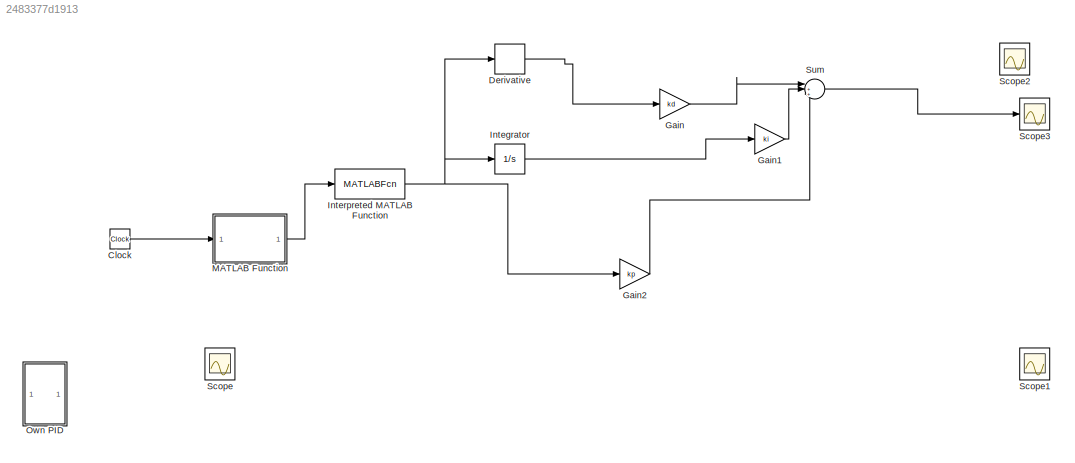
MODEL slx_2483377d1913
KIND model
CONFIG AbsTol = auto
CONFIG EnableMultiTasking = off
CONFIG FixedStep = 1e-3
CONFIG MaxStep = auto
CONFIG MinStep = auto
CONFIG RelTol = 1e-3
CONFIG SampleTimeConstraint = Unconstrained
CONFIG SolverName = FixedStepAuto
CONFIG StartTime = 0.0
CONFIG StopTime = 0.1
BLOCK [Clock] Clock
BLOCK [Derivative] Derivative
BLOCK [Gain] Gain
  Gain = kd
BLOCK [Gain] Gain1
  Gain = ki
BLOCK [Gain] Gain2
  Gain = kp
BLOCK [Integrator] Integrator
  Ports = [1, 1]
BLOCK [MATLABFcn] Interpreted MATLAB Function
  MATLABFcn = convexoptimizationsc
  Output1D = off
  OutputDimensions = 2
  Ports = [1, 1]
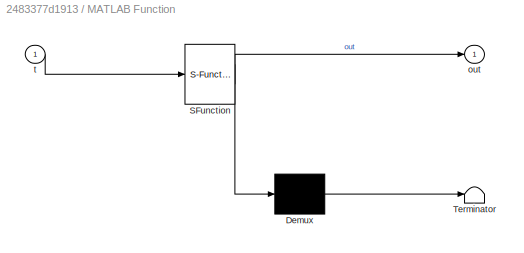
BLOCK [SubSystem] MATLAB Function
  ErrorFcn = Stateflow.Translate.translate
  PermitHierarchicalResolution = ExplicitOnly
  Ports = [1, 1]
  RequestExecContextInheritance = off
  SFBlockType = MATLAB Function
  TreatAsAtomicUnit = on
BLOCK [Demux] MATLAB Function/ Demux 
  Outputs = 1
  Ports = [1, 1]
BLOCK [S-Function] MATLAB Function/ SFunction 
  EnableBusSupport = on
  FunctionName = sf_sfun
  PortCounts = [1 2]
  Ports = [1, 2]
  SFcnIsStateOwnerBlock = off
  SFunctionDeploymentMode = off
  Tag = Stateflow S-Function 2
BLOCK [Terminator] MATLAB Function/ Terminator 
BLOCK [Outport] MATLAB Function/out
BLOCK [Inport] MATLAB Function/t
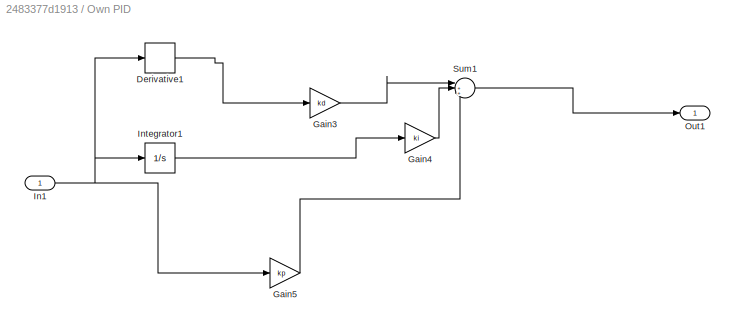
BLOCK [SubSystem] Own PID
  Ports = [1, 1]
  RequestExecContextInheritance = off
BLOCK [Derivative] Own PID/Derivative1
BLOCK [Gain] Own PID/Gain3
  Gain = kd
BLOCK [Gain] Own PID/Gain4
  Gain = ki
BLOCK [Gain] Own PID/Gain5
  Gain = kp
BLOCK [Inport] Own PID/In1
BLOCK [Integrator] Own PID/Integrator1
  Ports = [1, 1]
BLOCK [Outport] Own PID/Out1
BLOCK [Sum] Own PID/Sum1
  Inputs = |+++
  Ports = [3, 1]
BLOCK [Scope] Scope
  Floating = off
  NumInputPorts = 1
  Ports = [1]
  ScopeSpecificationString = Simulink.scopes.TimeScopeBlockCfg('CurrentConfiguration', extmgr.ConfigurationSet(extmgr.Configuration('Core','General UI',true),extmgr.Configuration('Core','Source UI',true),extmgr.Configuration('Sources','WiredSimulink',true,'DataLoggingVariableName','ScopeData1'),extmgr.Configuration('Visuals','Time Domain',true,'SerializedDisplays',{struct('MinYLimReal','-1.00000','MaxYLimReal','1.00000','YLab...<+1403ch>
BLOCK [Scope] Scope1
  Floating = off
  NumInputPorts = 1
  Ports = [1]
  ScopeSpecificationString = Simulink.scopes.TimeScopeBlockCfg('CurrentConfiguration', extmgr.ConfigurationSet(extmgr.Configuration('Core','General UI',true),extmgr.Configuration('Core','Source UI',true),extmgr.Configuration('Sources','WiredSimulink',true,'DataLoggingVariableName','ScopeData1'),extmgr.Configuration('Visuals','Time Domain',true,'SerializedDisplays',{struct('MinYLimReal','-1.00000','MaxYLimReal','1.00000','YLab...<+1403ch>
BLOCK [Scope] Scope2
  Floating = off
  NumInputPorts = 1
  Ports = [1]
  ScopeSpecificationString = Simulink.scopes.TimeScopeBlockCfg('CurrentConfiguration', extmgr.ConfigurationSet(extmgr.Configuration('Core','General UI',true),extmgr.Configuration('Core','Source UI',true),extmgr.Configuration('Sources','WiredSimulink',true,'DataLoggingVariableName','ScopeData2'),extmgr.Configuration('Visuals','Time Domain',true,'SerializedDisplays',{struct('MinYLimReal','-1.00000','MaxYLimReal','1.00000','YLab...<+1403ch>
BLOCK [Scope] Scope3
  Floating = off
  NumInputPorts = 1
  Ports = [1]
  ScopeSpecificationString = Simulink.scopes.TimeScopeBlockCfg('CurrentConfiguration', extmgr.ConfigurationSet(extmgr.Configuration('Core','General UI',true),extmgr.Configuration('Core','Source UI',true),extmgr.Configuration('Sources','WiredSimulink',true,'DataLoggingVariableName','ScopeData3'),extmgr.Configuration('Visuals','Time Domain',true,'SerializedDisplays',{struct('MinYLimReal','-0.00047','MaxYLimReal','0.00082','YLab...<+1372ch>
BLOCK [Sum] Sum
  Inputs = |+++
  Ports = [3, 1]
LINE Clock:1 -> MATLAB Function:1
LINE Derivative:1 -> Gain:1
LINE Gain1:1 -> Sum:2
LINE Gain2:1 -> Sum:3
LINE Gain:1 -> Sum:1
LINE Integrator:1 -> Gain1:1
NET Interpreted MATLAB Function:1 -> Derivative:1, Gain2:1, Integrator:1
LINE MATLAB Function:1 -> Interpreted MATLAB Function:1
LINE Own PID/Derivative1:1 -> Own PID/Gain3:1
LINE Own PID/Gain3:1 -> Own PID/Sum1:1
LINE Own PID/Gain4:1 -> Own PID/Sum1:2
LINE Own PID/Gain5:1 -> Own PID/Sum1:3
NET Own PID/In1:1 -> Own PID/Derivative1:1, Own PID/Gain5:1, Own PID/Integrator1:1
LINE Own PID/Integrator1:1 -> Own PID/Gain4:1
LINE Own PID/Sum1:1 -> Own PID/Out1:1
LINE Sum:1 -> Scope3:1
note: NET lines group one-source signal fan-out (src -> all destinations, sorted); 1:1 wires keep LINE
CHART MATLAB Function states=1 transitions=1
  STATE_LABEL 'eML_blk_kernel()'
  STATE_LABEL 'SCRIPT:\nfunction out = fcn(t)\nh=t.*eye(3,12);\nh_dot=t.*eye(3,12);\nV=eig(transpose(h)*h);\n%V=t.*eye(12,12);\nout = [h;h_dot;V];\nend\n'
CHART  states=0 transitions=0
